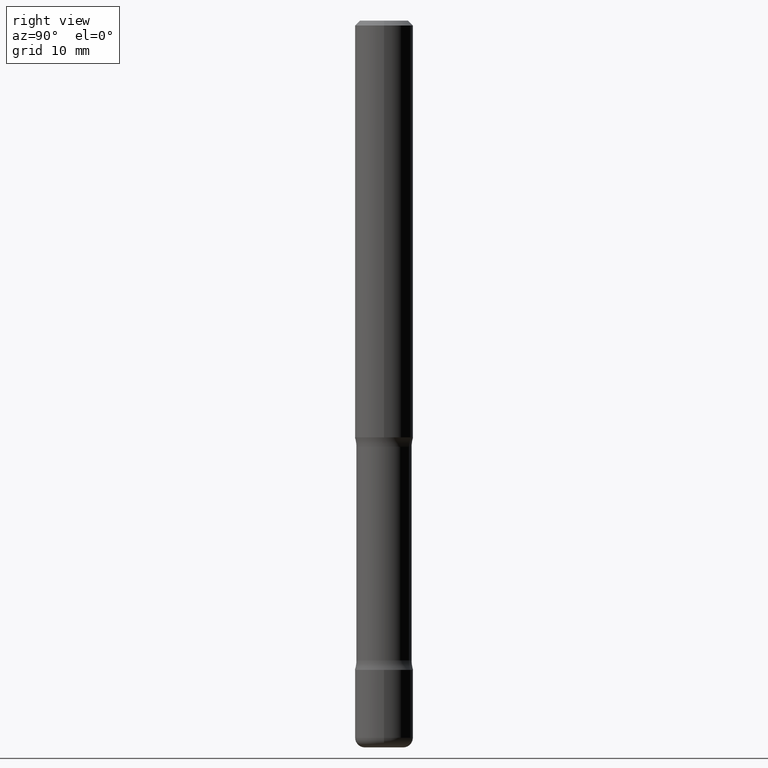
[diagram: clean part render]
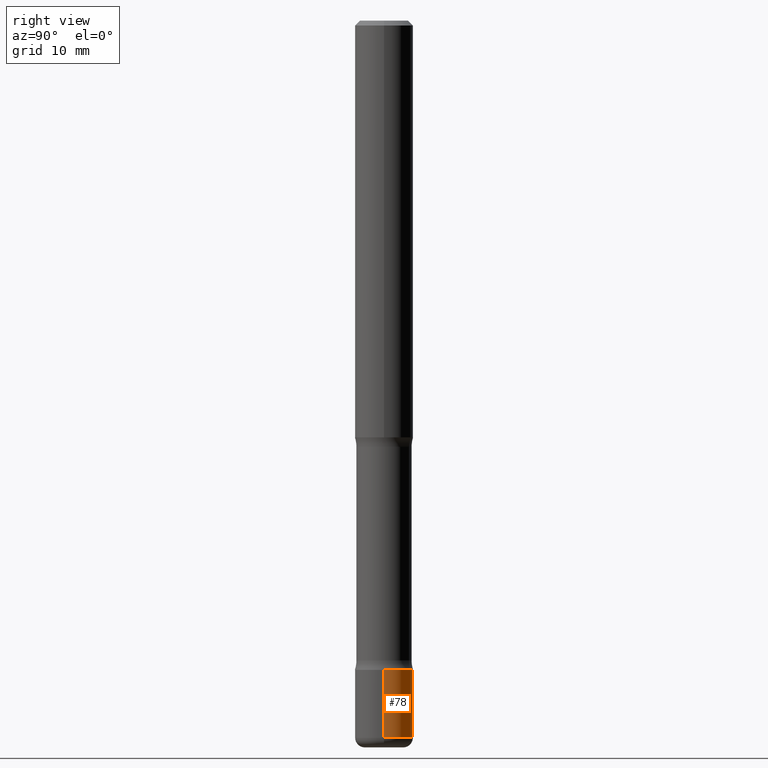
[diagram: same view with one face highlighted and labeled with its STEP entity id]
A machine part, right view. The second image highlights one B-rep face of the part: STEP entity #78.
In plain terms, the highlighted cylindrical surface (edge-blend (fillet) strip) has radius 2.9997 mm, axis along (-0, 0, 1).
Its self-contained STEP definition (entity closure, byte-faithful):
#4 = VERTEX_POINT ( 'NONE', #22 ) ;
#22 = CARTESIAN_POINT ( 'NONE',  ( -0.1181000000000007877, -9.332930761652935594E-15, -2.913399999999998879 ) ) ;
#26 = DIRECTION ( 'NONE',  ( 1.000000000000000000, -6.982962677686265922E-15, 0.000000000000000000 ) ) ;
#56 = CARTESIAN_POINT ( 'NONE',  ( -0.1181000000000004407, -8.851804633160347123E-15, -2.637799999999998146 ) ) ;
#63 = DIRECTION ( 'NONE',  ( 1.000000000000000000, -6.982962677686266711E-15, 4.876176775795935793E-29 ) ) ;
#69 = DIRECTION ( 'NONE',  ( -2.445468806185136597E-29, 3.491481338843145583E-15, 1.000000000000000000 ) ) ;
#78 = ADVANCED_FACE ( 'NONE', ( #513 ), #425, .T. ) ;
#83 = DIRECTION ( 'NONE',  ( -2.445468806185136877E-29, 3.491481338843145188E-15, 1.000000000000000000 ) ) ;
#92 = ORIENTED_EDGE ( 'NONE', *, *, #243, .F. ) ;
#95 = ORIENTED_EDGE ( 'NONE', *, *, #508, .T. ) ;
#108 = DIRECTION ( 'NONE',  ( -2.445468806185136597E-29, 3.491481338843145583E-15, 1.000000000000000000 ) ) ;
#132 = CARTESIAN_POINT ( 'NONE',  ( 0.1181000000000005656, -8.246878922347520097E-16, 5.758764772215027766E-30 ) ) ;
#156 = CARTESIAN_POINT ( 'NONE',  ( 0.1181000000000007877, -1.099676962482037073E-14, -2.913399999999998879 ) ) ;
#158 = CIRCLE ( 'NONE', #455, 0.1181000000000004407 ) ;
#171 = LINE ( 'NONE', #484, #379 ) ;
#212 = EDGE_CURVE ( 'NONE', #458, #387, #305, .T. ) ;
#213 = DIRECTION ( 'NONE',  ( -2.445468806185136877E-29, 3.491481338843145188E-15, 1.000000000000000000 ) ) ;
#231 = VECTOR ( 'NONE', #83, 39.37007874015748143 ) ;
#243 = EDGE_CURVE ( 'NONE', #387, #373, #158, .T. ) ;
#263 = DIRECTION ( 'NONE',  ( 1.000000000000000000, -6.982962677686262766E-15, 0.000000000000000000 ) ) ;
#284 = CARTESIAN_POINT ( 'NONE',  ( 0.000000000000000000, 0.000000000000000000, 0.000000000000000000 ) ) ;
#285 = CIRCLE ( 'NONE', #366, 0.1181000000000006767 ) ;
#305 = LINE ( 'NONE', #132, #231 ) ;
#307 = ORIENTED_EDGE ( 'NONE', *, *, #336, .T. ) ;
#336 = EDGE_CURVE ( 'NONE', #458, #4, #285, .T. ) ;
#360 = EDGE_LOOP ( 'NONE', ( #307, #95, #92, #376 ) ) ;
#366 = AXIS2_PLACEMENT_3D ( 'NONE', #375, #496, #26 ) ;
#373 = VERTEX_POINT ( 'NONE', #56 ) ;
#375 = CARTESIAN_POINT ( 'NONE',  ( 7.124628819939774466E-29, -1.017208173258561774E-14, -2.913399999999998879 ) ) ;
#376 = ORIENTED_EDGE ( 'NONE', *, *, #212, .F. ) ;
#378 = AXIS2_PLACEMENT_3D ( 'NONE', #284, #69, #63 ) ;
#379 = VECTOR ( 'NONE', #213, 39.37007874015748143 ) ;
#387 = VERTEX_POINT ( 'NONE', #462 ) ;
#425 = CYLINDRICAL_SURFACE ( 'NONE', #378, 0.1181000000000005656 ) ;
#455 = AXIS2_PLACEMENT_3D ( 'NONE', #510, #108, #263 ) ;
#458 = VERTEX_POINT ( 'NONE', #156 ) ;
#462 = CARTESIAN_POINT ( 'NONE',  ( 0.1181000000000004407, -1.003451736783519379E-14, -2.637799999999998146 ) ) ;
#484 = CARTESIAN_POINT ( 'NONE',  ( -0.1181000000000005656, 8.391509709326823386E-16, -5.809262341591071810E-30 ) ) ;
#496 = DIRECTION ( 'NONE',  ( -2.445468806185136597E-29, 3.491481338843145583E-15, 1.000000000000000000 ) ) ;
#508 = EDGE_CURVE ( 'NONE', #4, #373, #171, .T. ) ;
#510 = CARTESIAN_POINT ( 'NONE',  ( 6.450657616955149868E-29, -9.209829475600442370E-15, -2.637799999999998146 ) ) ;
#513 = FACE_OUTER_BOUND ( 'NONE', #360, .T. ) ;